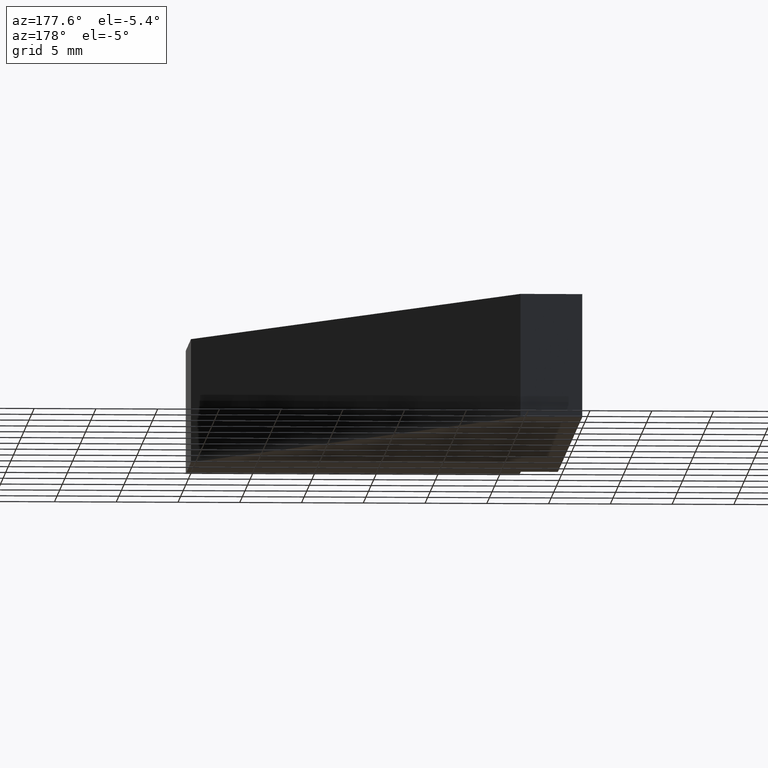
[diagram: clean part render]
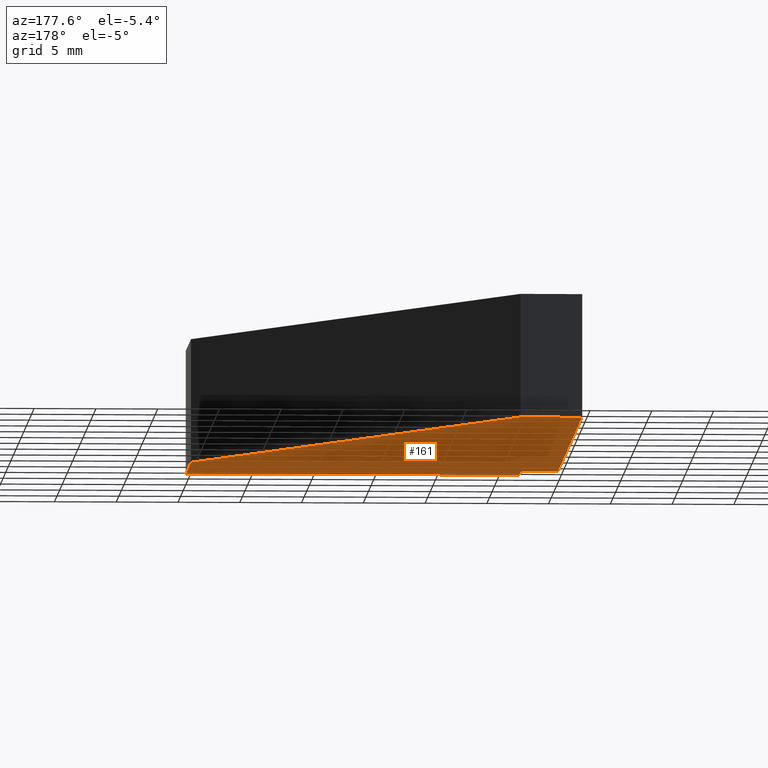
[diagram: same view with one face highlighted and labeled with its STEP entity id]
A machine part, auxiliary view. The second image highlights one B-rep face of the part: STEP entity #161.
In plain terms, the highlighted planar face has unit normal (0, 0, 1).
Its self-contained STEP definition (entity closure, byte-faithful):
#15=FACE_OUTER_BOUND('',#24,.T.);
#24=EDGE_LOOP('',(#110,#111,#112,#113,#114,#115,#116));
#33=LINE('',#247,#54);
#34=LINE('',#249,#55);
#35=LINE('',#251,#56);
#36=LINE('',#253,#57);
#37=LINE('',#255,#58);
#38=LINE('',#257,#59);
#39=LINE('',#258,#60);
#54=VECTOR('',#206,10.);
#55=VECTOR('',#207,10.);
#56=VECTOR('',#208,10.);
#57=VECTOR('',#209,10.);
#58=VECTOR('',#210,10.);
#59=VECTOR('',#211,10.);
#60=VECTOR('',#212,10.);
#75=VERTEX_POINT('',#245);
#76=VERTEX_POINT('',#246);
#77=VERTEX_POINT('',#248);
#78=VERTEX_POINT('',#250);
#79=VERTEX_POINT('',#252);
#80=VERTEX_POINT('',#254);
#81=VERTEX_POINT('',#256);
#89=EDGE_CURVE('',#75,#76,#33,.T.);
#90=EDGE_CURVE('',#77,#75,#34,.T.);
#91=EDGE_CURVE('',#78,#77,#35,.T.);
#92=EDGE_CURVE('',#79,#78,#36,.T.);
#93=EDGE_CURVE('',#80,#79,#37,.T.);
#94=EDGE_CURVE('',#81,#80,#38,.T.);
#95=EDGE_CURVE('',#76,#81,#39,.T.);
#110=ORIENTED_EDGE('',*,*,#89,.F.);
#111=ORIENTED_EDGE('',*,*,#90,.F.);
#112=ORIENTED_EDGE('',*,*,#91,.F.);
#113=ORIENTED_EDGE('',*,*,#92,.F.);
#114=ORIENTED_EDGE('',*,*,#93,.F.);
#115=ORIENTED_EDGE('',*,*,#94,.F.);
#116=ORIENTED_EDGE('',*,*,#95,.F.);
#152=PLANE('',#193);
#161=ADVANCED_FACE('',(#15),#152,.F.);
#193=AXIS2_PLACEMENT_3D('',#244,#204,#205);
#204=DIRECTION('center_axis',(0.,0.,1.));
#205=DIRECTION('ref_axis',(1.,0.,0.));
#206=DIRECTION('',(-0.52999894000318,0.847998304005088,0.));
#207=DIRECTION('',(0.,1.,0.));
#208=DIRECTION('',(1.,8.34726660672951E-18,0.));
#209=DIRECTION('',(1.48029736616687E-15,-1.,0.));
#210=DIRECTION('',(1.,-1.8503717077086E-16,0.));
#211=DIRECTION('',(-3.77948263702181E-16,-1.,0.));
#212=DIRECTION('',(-1.,0.,0.));
#244=CARTESIAN_POINT('Origin',(-18.7671491259835,20.9193159128567,-5.));
#245=CARTESIAN_POINT('',(0.,10.,-5.));
#246=CARTESIAN_POINT('',(-25.,50.,-5.));
#247=CARTESIAN_POINT('',(-25.,50.,-5.));
#248=CARTESIAN_POINT('',(0.,1.53537805366403E-15,-5.));
#249=CARTESIAN_POINT('',(0.,10.,-5.));
#250=CARTESIAN_POINT('',(-27.,1.31000185528234E-15,-5.));
#251=CARTESIAN_POINT('',(0.,1.53537805366403E-15,-5.));
#252=CARTESIAN_POINT('',(-27.,3.,-5.));
#253=CARTESIAN_POINT('',(-27.,1.31000185528234E-15,-5.));
#254=CARTESIAN_POINT('',(-30.,3.,-5.));
#255=CARTESIAN_POINT('',(-27.,3.,-5.));
#256=CARTESIAN_POINT('',(-30.,50.,-5.));
#257=CARTESIAN_POINT('',(-30.,3.,-5.));
#258=CARTESIAN_POINT('',(-30.,50.,-5.));